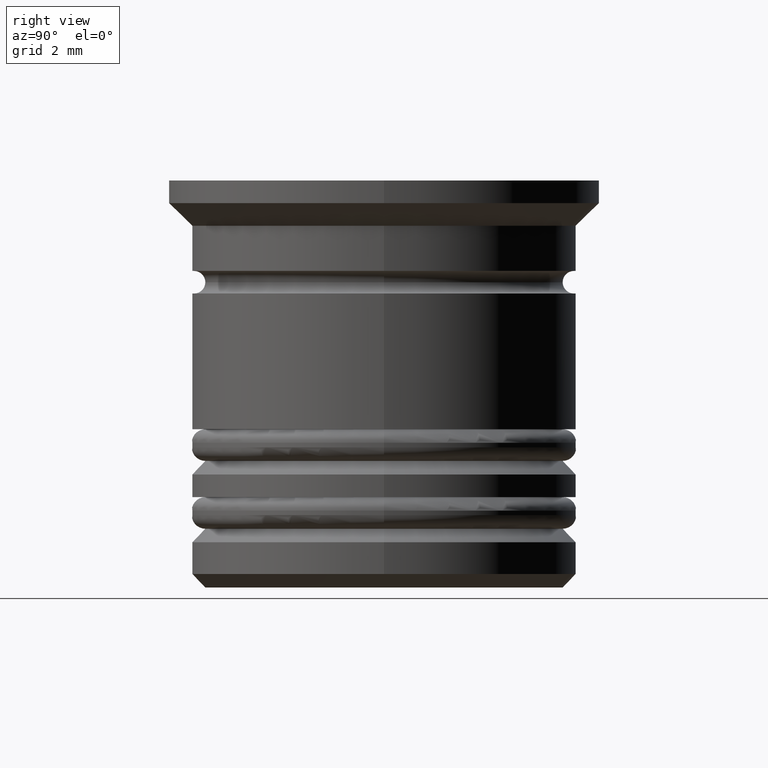
[diagram: clean part render]
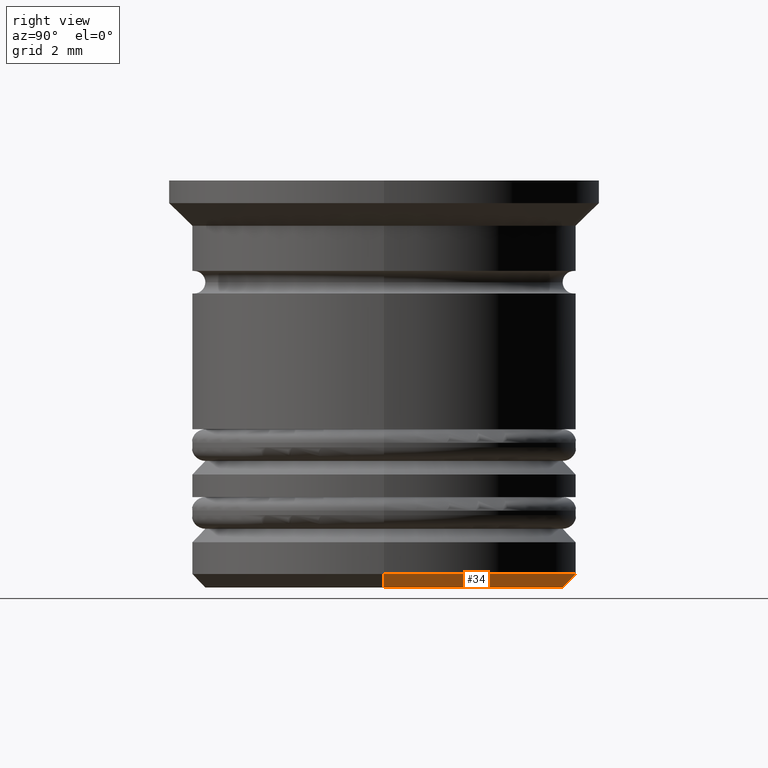
[diagram: same view with one face highlighted and labeled with its STEP entity id]
A machine part, right view. The second image highlights one B-rep face of the part: STEP entity #34.
In plain terms, the highlighted conical surface has half-angle 45 deg.
Its self-contained STEP definition (entity closure, byte-faithful):
#26 = VECTOR ( 'NONE', #975, 999.9999999999998863 ) ;
#34 = ADVANCED_FACE ( 'NONE', ( #1826 ), #1658, .T. ) ;
#53 = VECTOR ( 'NONE', #1713, 999.9999999999998863 ) ;
#130 = EDGE_CURVE ( 'NONE', #1155, #2013, #645, .T. ) ;
#179 = CARTESIAN_POINT ( 'NONE',  ( 0.000000000000000000, 0.000000000000000000, -8.999999999999998224 ) ) ;
#394 = DIRECTION ( 'NONE',  ( 1.000000000000000000, 0.000000000000000000, 0.000000000000000000 ) ) ;
#403 = ORIENTED_EDGE ( 'NONE', *, *, #1753, .T. ) ;
#421 = LINE ( 'NONE', #1827, #53 ) ;
#529 = DIRECTION ( 'NONE',  ( -0.000000000000000000, -0.000000000000000000, 1.000000000000000000 ) ) ;
#643 = DIRECTION ( 'NONE',  ( -1.000000000000000000, 0.000000000000000000, 0.000000000000000000 ) ) ;
#645 = CIRCLE ( 'NONE', #1600, 3.949999999999996181 ) ;
#656 = DIRECTION ( 'NONE',  ( 0.000000000000000000, 0.000000000000000000, -1.000000000000000000 ) ) ;
#696 = CARTESIAN_POINT ( 'NONE',  ( 0.000000000000000000, 0.000000000000000000, -8.699999999999993960 ) ) ;
#715 = AXIS2_PLACEMENT_3D ( 'NONE', #735, #1870, #1352 ) ;
#735 = CARTESIAN_POINT ( 'NONE',  ( 0.000000000000000000, 0.000000000000000000, -8.699999999999993960 ) ) ;
#775 = AXIS2_PLACEMENT_3D ( 'NONE', #696, #529, #394 ) ;
#809 = CARTESIAN_POINT ( 'NONE',  ( -4.250000000000000000, 5.204748896376250699E-16, -8.699999999999993960 ) ) ;
#873 = VERTEX_POINT ( 'NONE', #809 ) ;
#902 = EDGE_CURVE ( 'NONE', #2013, #1023, #1127, .T. ) ;
#938 = CARTESIAN_POINT ( 'NONE',  ( 3.949999999999996181, 0.000000000000000000, -8.999999999999998224 ) ) ;
#975 = DIRECTION ( 'NONE',  ( 0.7071067811865486830, 0.000000000000000000, 0.7071067811865464625 ) ) ;
#1023 = VERTEX_POINT ( 'NONE', #1311 ) ;
#1127 = LINE ( 'NONE', #1922, #26 ) ;
#1155 = VERTEX_POINT ( 'NONE', #1816 ) ;
#1311 = CARTESIAN_POINT ( 'NONE',  ( 4.250000000000000000, 0.000000000000000000, -8.699999999999993960 ) ) ;
#1352 = DIRECTION ( 'NONE',  ( -1.000000000000000000, 0.000000000000000000, 0.000000000000000000 ) ) ;
#1600 = AXIS2_PLACEMENT_3D ( 'NONE', #179, #656, #643 ) ;
#1602 = CIRCLE ( 'NONE', #715, 4.250000000000000000 ) ;
#1658 = CONICAL_SURFACE ( 'NONE', #775, 4.250000000000000000, 0.7853981633974498333 ) ;
#1676 = ORIENTED_EDGE ( 'NONE', *, *, #902, .F. ) ;
#1713 = DIRECTION ( 'NONE',  ( -0.7071067811865486830, 8.659560562354947649E-17, 0.7071067811865464625 ) ) ;
#1739 = EDGE_LOOP ( 'NONE', ( #2021, #403, #1884, #1676 ) ) ;
#1753 = EDGE_CURVE ( 'NONE', #1155, #873, #421, .T. ) ;
#1816 = CARTESIAN_POINT ( 'NONE',  ( -3.949999999999996181, 5.021051876504146399E-16, -8.999999999999998224 ) ) ;
#1826 = FACE_OUTER_BOUND ( 'NONE', #1739, .T. ) ;
#1827 = CARTESIAN_POINT ( 'NONE',  ( -4.250000000000000000, 5.204748896376250699E-16, -8.699999999999993960 ) ) ;
#1870 = DIRECTION ( 'NONE',  ( -0.000000000000000000, -0.000000000000000000, 1.000000000000000000 ) ) ;
#1875 = EDGE_CURVE ( 'NONE', #1023, #873, #1602, .T. ) ;
#1884 = ORIENTED_EDGE ( 'NONE', *, *, #1875, .F. ) ;
#1922 = CARTESIAN_POINT ( 'NONE',  ( 4.250000000000000000, 0.000000000000000000, -8.699999999999993960 ) ) ;
#2013 = VERTEX_POINT ( 'NONE', #938 ) ;
#2021 = ORIENTED_EDGE ( 'NONE', *, *, #130, .F. ) ;